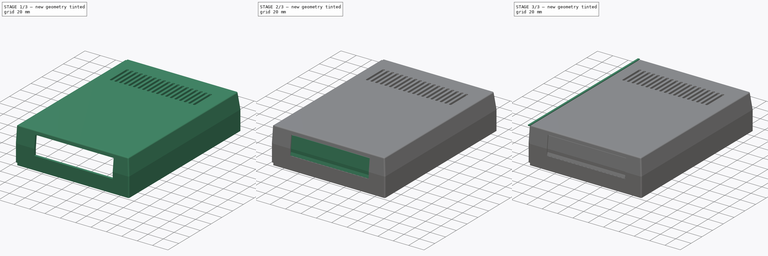
[diagram: build sequence overview — one tinted view per stage of 3, left to right]
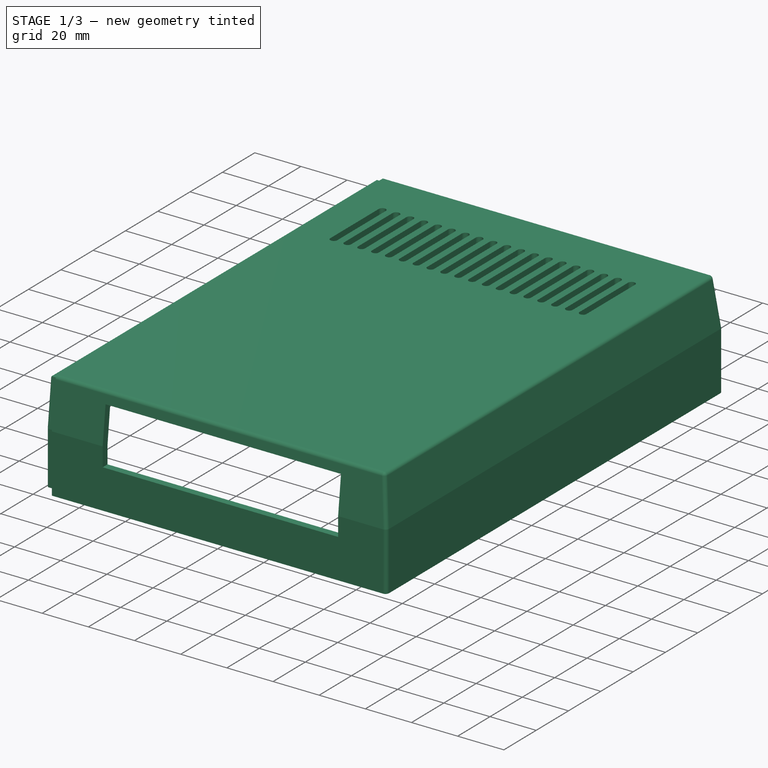
[diagram: stage 1 of 3 — iso view after this stage's code; geometry added in this stage tinted green]
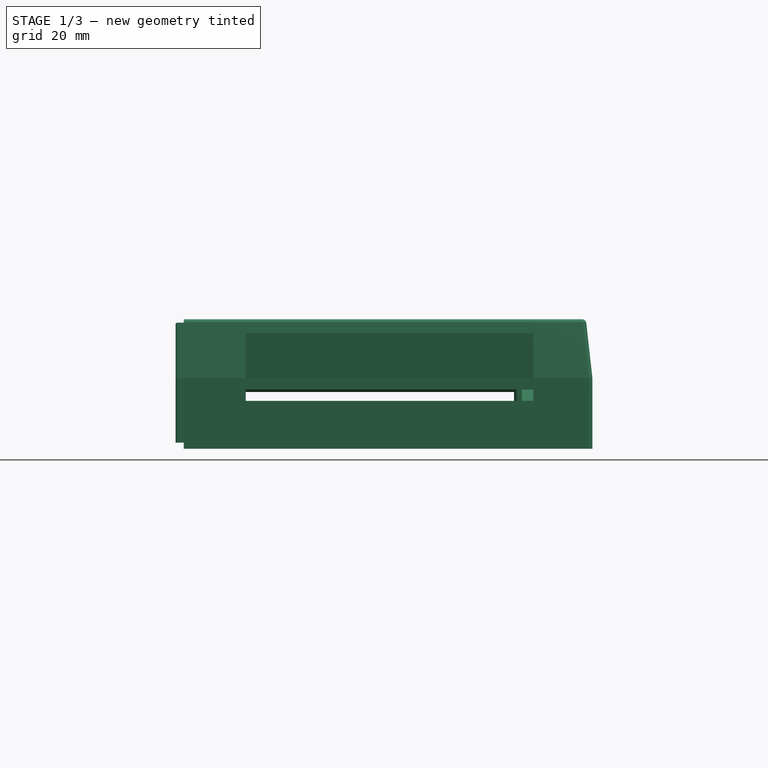
[diagram: stage 1 of 3 — front view after this stage's code; geometry added in this stage tinted green]
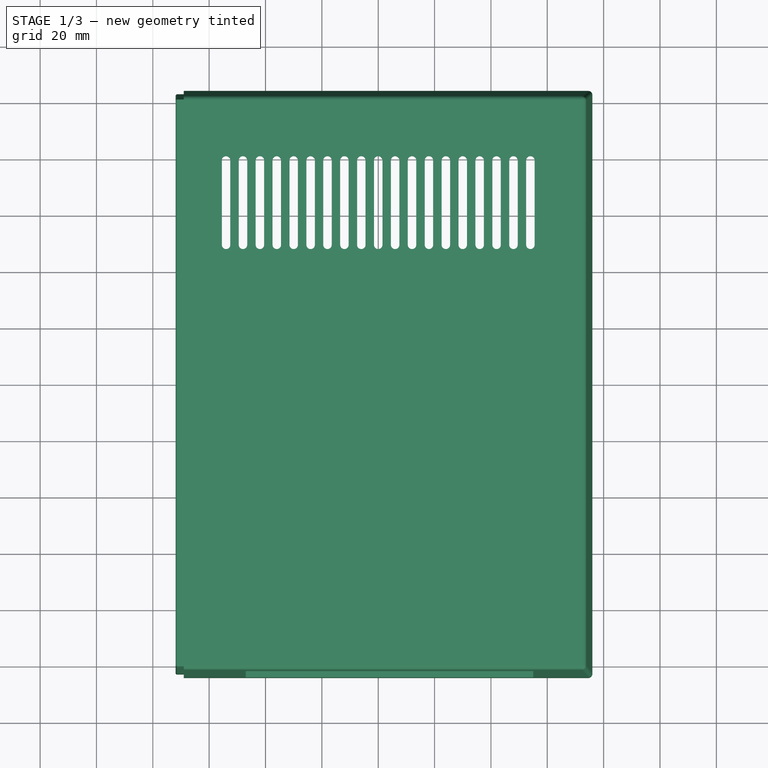
[diagram: stage 1 of 3 — top view after this stage's code; geometry added in this stage tinted green]
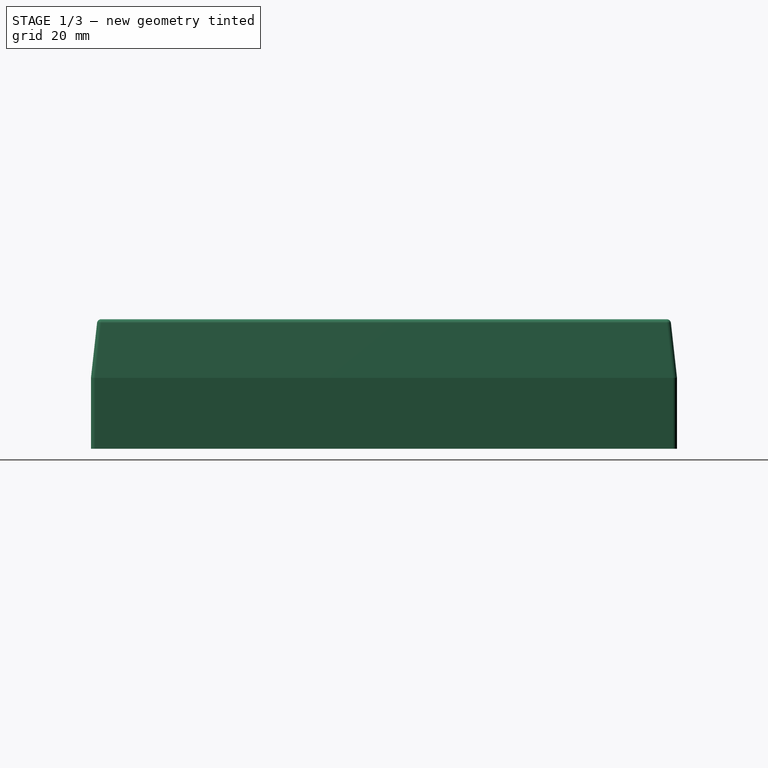
[diagram: stage 1 of 3 — right view after this stage's code; geometry added in this stage tinted green]
FCSTD DOCUMENT  (FreeCAD 0.21R33771 (Git))
Label: TopRight
License: All rights reserved
LicenseURL: https://en.wikipedia.org/wiki/All_rights_reserved
objects: Sketcher::SketchObject×5, Part::Feature×4, PartDesign::Pad×3, PartDesign::Body×2, PartDesign::Pocket×2, PartDesign::FeatureBase×1, PartDesign::Chamfer×1, PartDesign::Fillet×1, App::Part×1
note: 26 computed .brp shape members not serialized (recipe doc carries the construction recipe); baked Part::Feature solids carry a one-line shape summary decoded from their .brp

FEATURE [PartDesign::Body] Body  label="Support"
  Group = -> [Sketch,Pad]
  Origin = -> Origin001
  Tip = -> Pad
FEATURE [PartDesign::FeatureBase] BaseFeature
  BaseFeature = -> Part__Feature003
FEATURE [PartDesign::Chamfer] Chamfer  label="Lip chamfer"
  Angle = 45
  Base = -> BaseFeature [Edge578,Edge476,Edge479,Edge481,Edge579]
  BaseFeature = -> BaseFeature
  ChamferType = 0
  FlipDirection = false
  Refine = true
  Size = 0.4
  Size2 = 1
  SupportTransform = false
  UseAllEdges = false
FEATURE [PartDesign::Fillet] Fillet
  Base = -> Chamfer [Edge351,Edge345,Edge434,Edge439,Edge90,Edge115,Edge456,Edge171,Edge170,Edge441,Edge132,Edge156,Edge157,Edge356,Edge357,Edge355]
  BaseFeature = -> Chamfer
  Radius = 1.5
  Refine = true
  SupportTransform = false
  UseAllEdges = false
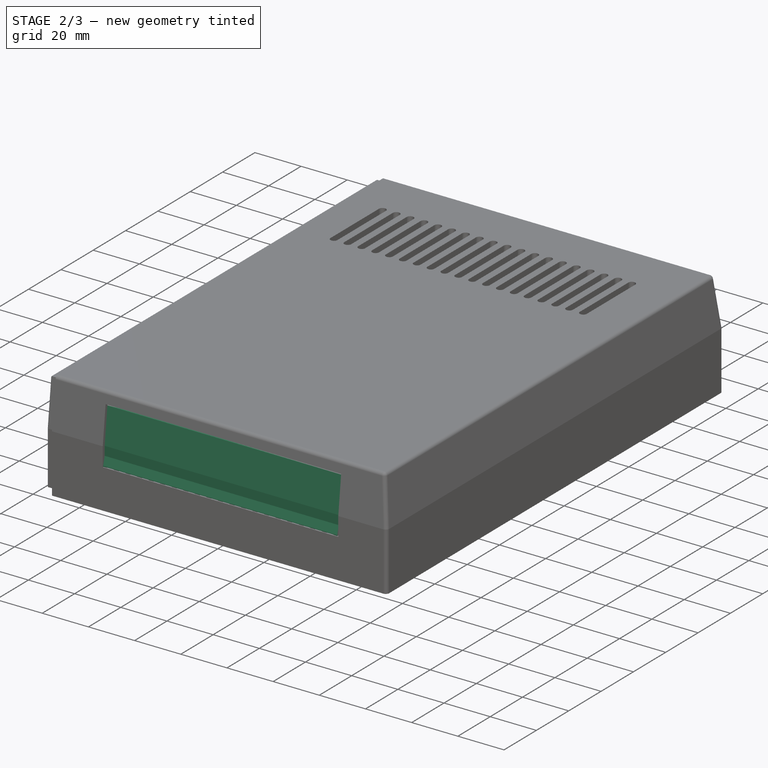
[diagram: stage 2 of 3 — iso view after this stage's code; geometry added in this stage tinted green]
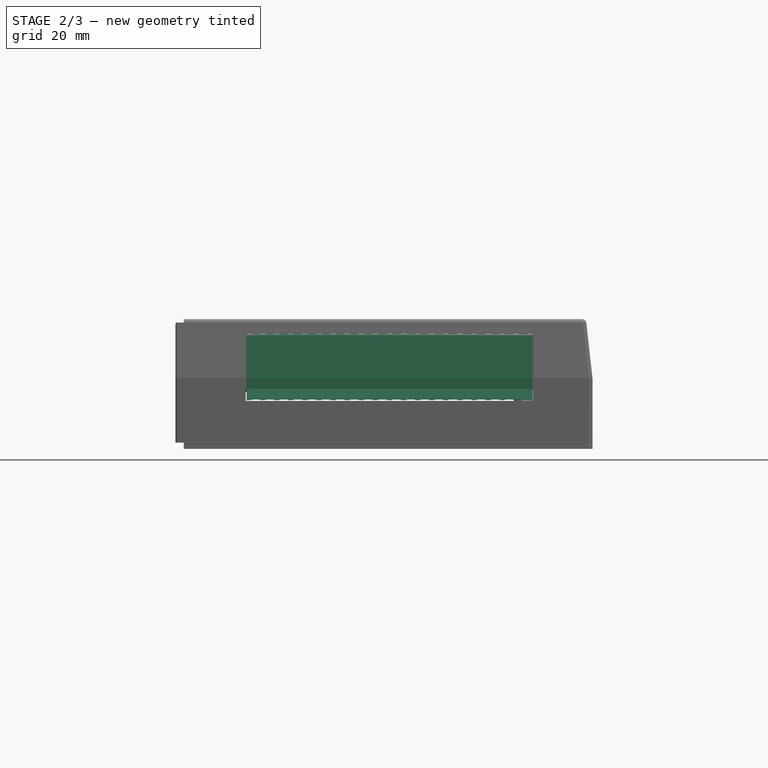
[diagram: stage 2 of 3 — front view after this stage's code; geometry added in this stage tinted green]
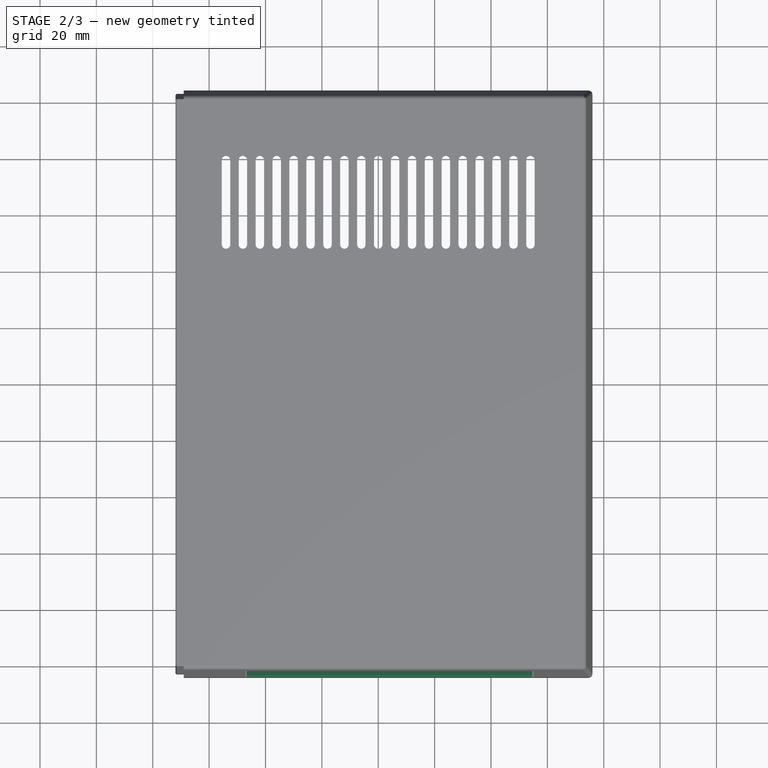
[diagram: stage 2 of 3 — top view after this stage's code; geometry added in this stage tinted green]
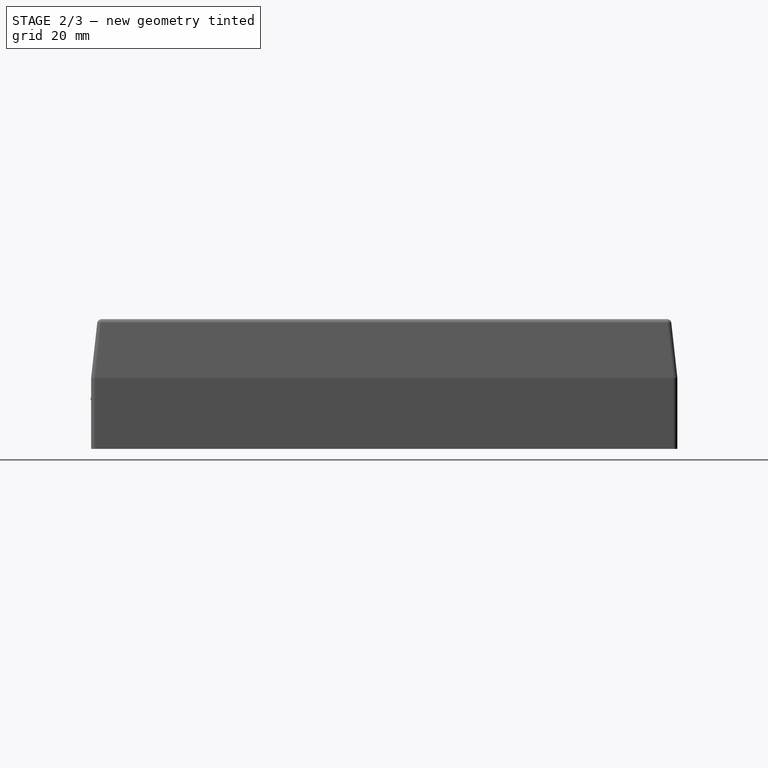
[diagram: stage 2 of 3 — right view after this stage's code; geometry added in this stage tinted green]
FEATURE [Sketcher::SketchObject] Sketch002  label="Floppy bezel"
  AttachmentOffset = pos=(0,0,51) rot=(0,0,1;0rad)
  ExternalGeometry = -> [Fillet]
  FullyConstrained = false
  MapMode = 5
  Placement = pos=(104,0,0) rot=(0.57735,0.57735,0.57735;2.0944rad)
  Support = -> [Fillet]
  sketch-geometry (12):
    g0: LineSegment StartX=-101.011 StartY=47 StartZ=0 EndX=-100.511 EndY=47 EndZ=0
    g1: LineSegment StartX=-100.077 StartY=46.225 StartZ=0 EndX=-101.75 EndY=31.1662 EndZ=0
    g2: LineSegment StartX=-101.75 StartY=31.1662 StartZ=0 EndX=-101.75 EndY=27.2454 EndZ=0
    g3: LineSegment StartX=-103.25 StartY=27.2455 StartZ=0 EndX=-103.25 EndY=31.1662 EndZ=0
    g4: LineSegment StartX=-103.25 StartY=31.1662 StartZ=0 EndX=-101.564 EndY=46.3409 EndZ=0
    g5: LineSegment StartX=-103.25 StartY=27.2455 StartZ=0 EndX=-104.2 EndY=23.7 EndZ=0
    g6: LineSegment StartX=-100.8 StartY=23.7 StartZ=0 EndX=-101.75 EndY=27.2454 EndZ=0
    g7: LineSegment StartX=-101.011 StartY=47 StartZ=0 EndX=-101.564 EndY=46.3409 EndZ=0
    g8: LineSegment StartX=-100.511 StartY=47 StartZ=0 EndX=-100.077 EndY=46.225 EndZ=0
    g9: LineSegment StartX=-100.8 StartY=23.7 StartZ=0 EndX=-100.8 EndY=23.3 EndZ=0
    g10: LineSegment StartX=-100.8 StartY=23.3 StartZ=0 EndX=-104.2 EndY=23.3 EndZ=0
    g11: LineSegment StartX=-104.2 StartY=23.7 StartZ=0 EndX=-104.2 EndY=23.3 EndZ=0
  constraints (30):
    c: Horizontal(g0)
    c: Coincident(g1,g2)
    c: Vertical(g2)
    c: Vertical(g3)
    c: Coincident(g3,g4)
    c: Parallel(g4,g-4)
    c: Parallel(g1,g-5)
    c: DistanceX(g-3,g-3) = 3.01846
    c: DistanceX(g-8,g-8) = 3
    c: DistanceX(g3,g2) = 1.5
    c: DistanceX(g-8,g3) = 0.75
    c: Distance(g3,g-6) = 0.75
    c: Coincident(g3,g5)
    c: Coincident(g6,g2)
    c: Angle(g3,g5) = 2.87979
    c: Angle(g6,g2) = 2.87979
    c: Angle(g7,g-3) = 2.26893
    c: Coincident(g0,g7)
    c: Coincident(g4,g7)
    c: Coincident(g0,g8)
    c: Coincident(g1,g8)
    c: PointOnObject(g0,g-3)
    c: DistanceX(g0,g0) = 0.5
    c: Coincident(g6,g9)
    c: Vertical(g9)
    c: Coincident(g9,g10)
    c: Horizontal(g10)
    c: Coincident(g5,g11)
    c: Block(g11)
    c: Coincident(g10,g11)
FEATURE [PartDesign::Pad] Pad001  label="Floppy bezel001"
  BaseFeature = -> Fillet
  Direction = (1,0,0)
  Length = 101.4
  Length2 = 10
  Midplane = true
  Profile = -> Sketch002
  ReferenceAxis = -> Sketch002 [N_Axis]
  Refine = true
  Type = 0
FEATURE [Sketcher::SketchObject] Sketch003
  FullyConstrained = true
  MapMode = 5
  Placement = pos=(149.1,3.82e-14,-7.7e-15) rot=(-0.57735,0.57735,0.57735;4.18879rad)
  Support = -> [Part__Feature001]
  sketch-geometry (1):
    g0: Circle CenterX=-97 CenterY=15 CenterZ=0 NormalX=0 NormalY=0 NormalZ=1 AngleXU=0 Radius=1.25
  constraints (2):
    c: Diameter(g0) = 2.5
    c: Block(g0)
FEATURE [Sketcher::SketchObject] Sketch004
  ExternalGeometry = -> [Pad001]
  FullyConstrained = false
  MapMode = 5
  Placement = pos=(0,-104.2,0) rot=(1,0,0;1.5708rad)
  Support = -> [Pad001]
  sketch-geometry (199):
    g0: LineSegment StartX=104 StartY=2.09798 StartZ=0 EndX=104 EndY=55.3632 EndZ=0
    g1: LineSegment StartX=153 StartY=23.2 StartZ=0 EndX=150 EndY=23.2 EndZ=0
    g2: LineSegment StartX=150 StartY=23.2 StartZ=0 EndX=150 EndY=23.5 EndZ=0
    g3: LineSegment StartX=150 StartY=23.5 StartZ=0 EndX=153 EndY=23.5 EndZ=0
    g4: LineSegment StartX=153 StartY=23.5 StartZ=0 EndX=153 EndY=23.2 EndZ=0
    g5: LineSegment StartX=148 StartY=23.2 StartZ=0 EndX=145 EndY=23.2 EndZ=0
    g6: LineSegment StartX=145 StartY=23.2 StartZ=0 EndX=145 EndY=23.5 EndZ=0
    g7: LineSegment StartX=145 StartY=23.5 StartZ=0 EndX=148 EndY=23.5 EndZ=0
    g8: LineSegment StartX=148 StartY=23.5 StartZ=0 EndX=148 EndY=23.2 EndZ=0
    g9: LineSegment StartX=153 StartY=23.2 StartZ=0 EndX=148 EndY=23.2 EndZ=0
    g10: LineSegment StartX=143 StartY=23.2 StartZ=0 EndX=140 EndY=23.2 EndZ=0
    g11: LineSegment StartX=140 StartY=23.2 StartZ=0 EndX=140 EndY=23.5 EndZ=0
    g12: LineSegment StartX=140 StartY=23.5 StartZ=0 EndX=143 EndY=23.5 EndZ=0
    g13: LineSegment StartX=143 StartY=23.5 StartZ=0 EndX=143 EndY=23.2 EndZ=0
    g14: LineSegment StartX=148 StartY=23.2 StartZ=0 EndX=143 EndY=23.2 EndZ=0
    g15: LineSegment StartX=138 StartY=23.2 StartZ=0 EndX=135 EndY=23.2 EndZ=0
    g16: LineSegment StartX=135 StartY=23.2 StartZ=0 EndX=135 EndY=23.5 EndZ=0
    g17: LineSegment StartX=135 StartY=23.5 StartZ=0 EndX=138 EndY=23.5 EndZ=0
    g18: LineSegment StartX=138 StartY=23.5 StartZ=0 EndX=138 EndY=23.2 EndZ=0
    g19: LineSegment StartX=143 StartY=23.2 StartZ=0 EndX=138 EndY=23.2 EndZ=0
    g20: LineSegment StartX=133 StartY=23.2 StartZ=0 EndX=130 EndY=23.2 EndZ=0
    g21: LineSegment StartX=130 StartY=23.2 StartZ=0 EndX=130 EndY=23.5 EndZ=0
    g22: LineSegment StartX=130 StartY=23.5 StartZ=0 EndX=133 EndY=23.5 EndZ=0
    g23: LineSegment StartX=133 StartY=23.5 StartZ=0 EndX=133 EndY=23.2 EndZ=0
    g24: LineSegment StartX=138 StartY=23.2 StartZ=0 EndX=133 EndY=23.2 EndZ=0
    g25: LineSegment StartX=128 StartY=23.2 StartZ=0 EndX=125 EndY=23.2 EndZ=0
    g26: LineSegment StartX=125 StartY=23.2 StartZ=0 EndX=125 EndY=23.5 EndZ=0
    g27: LineSegment StartX=125 StartY=23.5 StartZ=0 EndX=128 EndY=23.5 EndZ=0
    g28: LineSegment StartX=128 StartY=23.5 StartZ=0 EndX=128 EndY=23.2 EndZ=0
    g29: LineSegment StartX=133 StartY=23.2 StartZ=0 EndX=128 EndY=23.2 EndZ=0
    g30: LineSegment StartX=123 StartY=23.2 StartZ=0 EndX=120 EndY=23.2 EndZ=0
    g31: LineSegment StartX=120 StartY=23.2 StartZ=0 EndX=120 EndY=23.5 EndZ=0
    g32: LineSegment StartX=120 StartY=23.5 StartZ=0 EndX=123 EndY=23.5 EndZ=0
    g33: LineSegment StartX=123 StartY=23.5 StartZ=0 EndX=123 EndY=23.2 EndZ=0
    g34: LineSegment StartX=128 StartY=23.2 StartZ=0 EndX=123 EndY=23.2 EndZ=0
    g35: LineSegment StartX=118 StartY=23.2 StartZ=0 EndX=115 EndY=23.2 EndZ=0
    g36: LineSegment StartX=115 StartY=23.2 StartZ=0 EndX=115 EndY=23.5 EndZ=0
    g37: LineSegment StartX=115 StartY=23.5 StartZ=0 EndX=118 EndY=23.5 EndZ=0
    g38: LineSegment StartX=118 StartY=23.5 StartZ=0 EndX=118 EndY=23.2 EndZ=0
    g39: LineSegment StartX=123 StartY=23.2 StartZ=0 EndX=118 EndY=23.2 EndZ=0
    g40: LineSegment StartX=113 StartY=23.2 StartZ=0 EndX=110 EndY=23.2 EndZ=0
    g41: LineSegment StartX=110 StartY=23.2 StartZ=0 EndX=110 EndY=23.5 EndZ=0
    g42: LineSegment StartX=110 StartY=23.5 StartZ=0 EndX=113 EndY=23.5 EndZ=0
    g43: LineSegment StartX=113 StartY=23.5 StartZ=0 EndX=113 EndY=23.2 EndZ=0
    g44: LineSegment StartX=118 StartY=23.2 StartZ=0 EndX=113 EndY=23.2 EndZ=0
    g45: LineSegment StartX=108 StartY=23.2 StartZ=0 EndX=105 EndY=23.2 EndZ=0
    g46: LineSegment StartX=105 StartY=23.2 StartZ=0 EndX=105 EndY=23.5 EndZ=0
    g47: LineSegment StartX=105 StartY=23.5 StartZ=0 EndX=108 EndY=23.5 EndZ=0
    g48: LineSegment StartX=108 StartY=23.5 StartZ=0 EndX=108 EndY=23.2 EndZ=0
    g49: LineSegment StartX=113 StartY=23.2 StartZ=0 EndX=108 EndY=23.2 EndZ=0
    g50: LineSegment StartX=103 StartY=23.2 StartZ=0 EndX=100 EndY=23.2 EndZ=0
    g51: LineSegment StartX=100 StartY=23.2 StartZ=0 EndX=100 EndY=23.5 EndZ=0
    g52: LineSegment StartX=100 StartY=23.5 StartZ=0 EndX=103 EndY=23.5 EndZ=0
    g53: LineSegment StartX=103 StartY=23.5 StartZ=0 EndX=103 EndY=23.2 EndZ=0
    g54: LineSegment StartX=108 StartY=23.2 StartZ=0 EndX=103 EndY=23.2 EndZ=0
    g55: LineSegment StartX=98 StartY=23.2 StartZ=0 EndX=95 EndY=23.2 EndZ=0
    g56: LineSegment StartX=95 StartY=23.2 StartZ=0 EndX=95 EndY=23.5 EndZ=0
    g57: LineSegment StartX=95 StartY=23.5 StartZ=0 EndX=98 EndY=23.5 EndZ=0
    g58: LineSegment StartX=98 StartY=23.5 StartZ=0 EndX=98 EndY=23.2 EndZ=0
    g59: LineSegment StartX=103 StartY=23.2 StartZ=0 EndX=98 EndY=23.2 EndZ=0
    g60: LineSegment StartX=93 StartY=23.2 StartZ=0 EndX=90 EndY=23.2 EndZ=0
    g61: LineSegment StartX=90 StartY=23.2 StartZ=0 EndX=90 EndY=23.5 EndZ=0
    g62: LineSegment StartX=90 StartY=23.5 StartZ=0 EndX=93 EndY=23.5 EndZ=0
    g63: LineSegment StartX=93 StartY=23.5 StartZ=0 EndX=93 EndY=23.2 EndZ=0
    g64: LineSegment StartX=98 StartY=23.2 StartZ=0 EndX=93 EndY=23.2 EndZ=0
    g65: LineSegment StartX=88 StartY=23.2 StartZ=0 EndX=85 EndY=23.2 EndZ=0
    g66: LineSegment StartX=85 StartY=23.2 StartZ=0 EndX=85 EndY=23.5 EndZ=0
    g67: LineSegment StartX=85 StartY=23.5 StartZ=0 EndX=88 EndY=23.5 EndZ=0
    g68: LineSegment StartX=88 StartY=23.5 StartZ=0 EndX=88 EndY=23.2 EndZ=0
    g69: LineSegment StartX=93 StartY=23.2 StartZ=0 EndX=88 EndY=23.2 EndZ=0
    g70: LineSegment StartX=83 StartY=23.2 StartZ=0 EndX=80 EndY=23.2 EndZ=0
    g71: LineSegment StartX=80 StartY=23.2 StartZ=0 EndX=80 EndY=23.5 EndZ=0
    g72: LineSegment StartX=80 StartY=23.5 StartZ=0 EndX=83 EndY=23.5 EndZ=0
    g73: LineSegment StartX=83 StartY=23.5 StartZ=0 EndX=83 EndY=23.2 EndZ=0
    g74: LineSegment StartX=88 StartY=23.2 StartZ=0 EndX=83 EndY=23.2 EndZ=0
    g75: LineSegment StartX=78 StartY=23.2 StartZ=0 EndX=75 EndY=23.2 EndZ=0
    g76: LineSegment StartX=75 StartY=23.2 StartZ=0 EndX=75 EndY=23.5 EndZ=0
    g77: LineSegment StartX=75 StartY=23.5 StartZ=0 EndX=78 EndY=23.5 EndZ=0
    g78: LineSegment StartX=78 StartY=23.5 StartZ=0 EndX=78 EndY=23.2 EndZ=0
    g79: LineSegment StartX=83 StartY=23.2 StartZ=0 EndX=78 EndY=23.2 EndZ=0
    g80: LineSegment StartX=73 StartY=23.2 StartZ=0 EndX=70 EndY=23.2 EndZ=0
    g81: LineSegment StartX=70 StartY=23.2 StartZ=0 EndX=70 EndY=23.5 EndZ=0
    g82: LineSegment StartX=70 StartY=23.5 StartZ=0 EndX=73 EndY=23.5 EndZ=0
    g83: LineSegment StartX=73 StartY=23.5 StartZ=0 EndX=73 EndY=23.2 EndZ=0
    g84: LineSegment StartX=78 StartY=23.2 StartZ=0 EndX=73 EndY=23.2 EndZ=0
    g85: LineSegment StartX=68 StartY=23.2 StartZ=0 EndX=65 EndY=23.2 EndZ=0
    g86: LineSegment StartX=65 StartY=23.2 StartZ=0 EndX=65 EndY=23.5 EndZ=0
    g87: LineSegment StartX=65 StartY=23.5 StartZ=0 EndX=68 EndY=23.5 EndZ=0
    g88: LineSegment StartX=68 StartY=23.5 StartZ=0 EndX=68 EndY=23.2 EndZ=0
    g89: LineSegment StartX=73 StartY=23.2 StartZ=0 EndX=68 EndY=23.2 EndZ=0
    g90: LineSegment StartX=63 StartY=23.2 StartZ=0 EndX=60 EndY=23.2 EndZ=0
    g91: LineSegment StartX=60 StartY=23.2 StartZ=0 EndX=60 EndY=23.5 EndZ=0
    g92: LineSegment StartX=60 StartY=23.5 StartZ=0 EndX=63 EndY=23.5 EndZ=0
    g93: LineSegment StartX=63 StartY=23.5 StartZ=0 EndX=63 EndY=23.2 EndZ=0
    g94: LineSegment StartX=68 StartY=23.2 StartZ=0 EndX=63 EndY=23.2 EndZ=0
    g95: LineSegment StartX=58 StartY=23.2 StartZ=0 EndX=55 EndY=23.2 EndZ=0
    g96: LineSegment StartX=55 StartY=23.2 StartZ=0 EndX=55 EndY=23.5 EndZ=0
    g97: LineSegment StartX=55 StartY=23.5 StartZ=0 EndX=58 EndY=23.5 EndZ=0
    g98: LineSegment StartX=58 StartY=23.5 StartZ=0 EndX=58 EndY=23.2 EndZ=0
    g99: LineSegment StartX=63 StartY=23.2 StartZ=0 EndX=58 EndY=23.2 EndZ=0
    g100: LineSegment StartX=153 StartY=46.7 StartZ=0 EndX=150 EndY=46.7 EndZ=0
    g101: LineSegment StartX=150 StartY=46.7 StartZ=0 EndX=150 EndY=47 EndZ=0
    g102: LineSegment StartX=150 StartY=47 StartZ=0 EndX=153 EndY=47 EndZ=0
    g103: LineSegment StartX=153 StartY=47 StartZ=0 EndX=153 EndY=46.7 EndZ=0
    g104: LineSegment StartX=148 StartY=46.7 StartZ=0 EndX=145 EndY=46.7 EndZ=0
    g105: LineSegment StartX=145 StartY=46.7 StartZ=0 EndX=145 EndY=47 EndZ=0
    g106: LineSegment StartX=145 StartY=47 StartZ=0 EndX=148 EndY=47 EndZ=0
    g107: LineSegment StartX=148 StartY=47 StartZ=0 EndX=148 EndY=46.7 EndZ=0
    g108: LineSegment StartX=153 StartY=46.7 StartZ=0 EndX=148 EndY=46.7 EndZ=0
    g109: LineSegment StartX=143 StartY=46.7 StartZ=0 EndX=140 EndY=46.7 EndZ=0
    g110: LineSegment StartX=140 StartY=46.7 StartZ=0 EndX=140 EndY=47 EndZ=0
    g111: LineSegment StartX=140 StartY=47 StartZ=0 EndX=143 EndY=47 EndZ=0
    g112: LineSegment StartX=143 StartY=47 StartZ=0 EndX=143 EndY=46.7 EndZ=0
    g113: LineSegment StartX=148 StartY=46.7 StartZ=0 EndX=143 EndY=46.7 EndZ=0
    g114: LineSegment StartX=138 StartY=46.7 StartZ=0 EndX=135 EndY=46.7 EndZ=0
    g115: LineSegment StartX=135 StartY=46.7 StartZ=0 EndX=135 EndY=47 EndZ=0
    g116: LineSegment StartX=135 StartY=47 StartZ=0 EndX=138 EndY=47 EndZ=0
    g117: LineSegment StartX=138 StartY=47 StartZ=0 EndX=138 EndY=46.7 EndZ=0
    g118: LineSegment StartX=143 StartY=46.7 StartZ=0 EndX=138 EndY=46.7 EndZ=0
    g119: LineSegment StartX=133 StartY=46.7 StartZ=0 EndX=130 EndY=46.7 EndZ=0
    g120: LineSegment StartX=130 StartY=46.7 StartZ=0 EndX=130 EndY=47 EndZ=0
    g121: LineSegment StartX=130 StartY=47 StartZ=0 EndX=133 EndY=47 EndZ=0
    g122: LineSegment StartX=133 StartY=47 StartZ=0 EndX=133 EndY=46.7 EndZ=0
    g123: LineSegment StartX=138 StartY=46.7 StartZ=0 EndX=133 EndY=46.7 EndZ=0
    g124: LineSegment StartX=128 StartY=46.7 StartZ=0 EndX=125 EndY=46.7 EndZ=0
    g125: LineSegment StartX=125 StartY=46.7 StartZ=0 EndX=125 EndY=47 EndZ=0
    g126: LineSegment StartX=125 StartY=47 StartZ=0 EndX=128 EndY=47 EndZ=0
    g127: LineSegment StartX=128 StartY=47 StartZ=0 EndX=128 EndY=46.7 EndZ=0
    g128: LineSegment StartX=133 StartY=46.7 StartZ=0 EndX=128 EndY=46.7 EndZ=0
    g129: LineSegment StartX=123 StartY=46.7 StartZ=0 EndX=120 EndY=46.7 EndZ=0
    g130: LineSegment StartX=120 StartY=46.7 StartZ=0 EndX=120 EndY=47 EndZ=0
    g131: LineSegment StartX=120 StartY=47 StartZ=0 EndX=123 EndY=47 EndZ=0
    g132: LineSegment StartX=123 StartY=47 StartZ=0 EndX=123 EndY=46.7 EndZ=0
    g133: LineSegment StartX=128 StartY=46.7 StartZ=0 EndX=123 EndY=46.7 EndZ=0
    g134: LineSegment StartX=118 StartY=46.7 StartZ=0 EndX=115 EndY=46.7 EndZ=0
    g135: LineSegment StartX=115 StartY=46.7 StartZ=0 EndX=115 EndY=47 EndZ=0
    g136: LineSegment StartX=115 StartY=47 StartZ=0 EndX=118 EndY=47 EndZ=0
    g137: LineSegment StartX=118 StartY=47 StartZ=0 EndX=118 EndY=46.7 EndZ=0
    g138: LineSegment StartX=123 StartY=46.7 StartZ=0 EndX=118 EndY=46.7 EndZ=0
    g139: LineSegment StartX=113 StartY=46.7 StartZ=0 EndX=110 EndY=46.7 EndZ=0
    g140: LineSegment StartX=110 StartY=46.7 StartZ=0 EndX=110 EndY=47 EndZ=0
    g141: LineSegment StartX=110 StartY=47 StartZ=0 EndX=113 EndY=47 EndZ=0
    g142: LineSegment StartX=113 StartY=47 StartZ=0 EndX=113 EndY=46.7 EndZ=0
    g143: LineSegment StartX=118 StartY=46.7 StartZ=0 EndX=113 EndY=46.7 EndZ=0
    g144: LineSegment StartX=108 StartY=46.7 StartZ=0 EndX=105 EndY=46.7 EndZ=0
    g145: LineSegment StartX=105 StartY=46.7 StartZ=0 EndX=105 EndY=47 EndZ=0
    g146: LineSegment StartX=105 StartY=47 StartZ=0 EndX=108 EndY=47 EndZ=0
    g147: LineSegment StartX=108 StartY=47 StartZ=0 EndX=108 EndY=46.7 EndZ=0
    g148: LineSegment StartX=113 StartY=46.7 StartZ=0 EndX=108 EndY=46.7 EndZ=0
    g149: LineSegment StartX=103 StartY=46.7 StartZ=0 EndX=100 EndY=46.7 EndZ=0
    g150: LineSegment StartX=100 StartY=46.7 StartZ=0 EndX=100 EndY=47 EndZ=0
    g151: LineSegment StartX=100 StartY=47 StartZ=0 EndX=103 EndY=47 EndZ=0
    g152: LineSegment StartX=103 StartY=47 StartZ=0 EndX=103 EndY=46.7 EndZ=0
    g153: LineSegment StartX=108 StartY=46.7 StartZ=0 EndX=103 EndY=46.7 EndZ=0
    g154: LineSegment StartX=98 StartY=46.7 StartZ=0 EndX=95 EndY=46.7 EndZ=0
    g155: LineSegment StartX=95 StartY=46.7 StartZ=0 EndX=95 EndY=47 EndZ=0
    g156: LineSegment StartX=95 StartY=47 StartZ=0 EndX=98 EndY=47 EndZ=0
    g157: LineSegment StartX=98 StartY=47 StartZ=0 EndX=98 EndY=46.7 EndZ=0
    g158: LineSegment StartX=103 StartY=46.7 StartZ=0 EndX=98 EndY=46.7 EndZ=0
    g159: LineSegment StartX=93 StartY=46.7 StartZ=0 EndX=90 EndY=46.7 EndZ=0
    g160: LineSegment StartX=90 StartY=46.7 StartZ=0 EndX=90 EndY=47 EndZ=0
    g161: LineSegment StartX=90 StartY=47 StartZ=0 EndX=93 EndY=47 EndZ=0
    g162: LineSegment StartX=93 StartY=47 StartZ=0 EndX=93 EndY=46.7 EndZ=0
    g163: LineSegment StartX=98 StartY=46.7 StartZ=0 EndX=93 EndY=46.7 EndZ=0
    g164: LineSegment StartX=88 StartY=46.7 StartZ=0 EndX=85 EndY=46.7 EndZ=0
    g165: LineSegment StartX=85 StartY=46.7 StartZ=0 EndX=85 EndY=47 EndZ=0
    g166: LineSegment StartX=85 StartY=47 StartZ=0 EndX=88 EndY=47 EndZ=0
    g167: LineSegment StartX=88 StartY=47 StartZ=0 EndX=88 EndY=46.7 EndZ=0
    g168: LineSegment StartX=93 StartY=46.7 StartZ=0 EndX=88 EndY=46.7 EndZ=0
    g169: LineSegment StartX=83 StartY=46.7 StartZ=0 EndX=80 EndY=46.7 EndZ=0
    g170: LineSegment StartX=80 StartY=46.7 StartZ=0 EndX=80 EndY=47 EndZ=0
    g171: LineSegment StartX=80 StartY=47 StartZ=0 EndX=83 EndY=47 EndZ=0
    g172: LineSegment StartX=83 StartY=47 StartZ=0 EndX=83 EndY=46.7 EndZ=0
    g173: LineSegment StartX=88 StartY=46.7 StartZ=0 EndX=83 EndY=46.7 EndZ=0
    g174: LineSegment StartX=78 StartY=46.7 StartZ=0 EndX=75 EndY=46.7 EndZ=0
    g175: LineSegment StartX=75 StartY=46.7 StartZ=0 EndX=75 EndY=47 EndZ=0
    g176: LineSegment StartX=75 StartY=47 StartZ=0 EndX=78 EndY=47 EndZ=0
    g177: LineSegment StartX=78 StartY=47 StartZ=0 EndX=78 EndY=46.7 EndZ=0
    g178: LineSegment StartX=83 StartY=46.7 StartZ=0 EndX=78 EndY=46.7 EndZ=0
    g179: LineSegment StartX=73 StartY=46.7 StartZ=0 EndX=70 EndY=46.7 EndZ=0
    g180: LineSegment StartX=70 StartY=46.7 StartZ=0 EndX=70 EndY=47 EndZ=0
    g181: LineSegment StartX=70 StartY=47 StartZ=0 EndX=73 EndY=47 EndZ=0
    g182: LineSegment StartX=73 StartY=47 StartZ=0 EndX=73 EndY=46.7 EndZ=0
    g183: LineSegment StartX=78 StartY=46.7 StartZ=0 EndX=73 EndY=46.7 EndZ=0
    g184: LineSegment StartX=68 StartY=46.7 StartZ=0 EndX=65 EndY=46.7 EndZ=0
    g185: LineSegment StartX=65 StartY=46.7 StartZ=0 EndX=65 EndY=47 EndZ=0
    g186: LineSegment StartX=65 StartY=47 StartZ=0 EndX=68 EndY=47 EndZ=0
    g187: LineSegment StartX=68 StartY=47 StartZ=0 EndX=68 EndY=46.7 EndZ=0
    g188: LineSegment StartX=73 StartY=46.7 StartZ=0 EndX=68 EndY=46.7 EndZ=0
    g189: LineSegment StartX=63 StartY=46.7 StartZ=0 EndX=60 EndY=46.7 EndZ=0
    g190: LineSegment StartX=60 StartY=46.7 StartZ=0 EndX=60 EndY=47 EndZ=0
    g191: LineSegment StartX=60 StartY=47 StartZ=0 EndX=63 EndY=47 EndZ=0
    g192: LineSegment StartX=63 StartY=47 StartZ=0 EndX=63 EndY=46.7 EndZ=0
    g193: LineSegment StartX=68 StartY=46.7 StartZ=0 EndX=63 EndY=46.7 EndZ=0
    g194: LineSegment StartX=58 StartY=46.7 StartZ=0 EndX=55 EndY=46.7 EndZ=0
    g195: LineSegment StartX=55 StartY=46.7 StartZ=0 EndX=55 EndY=47 EndZ=0
    g196: LineSegment StartX=55 StartY=47 StartZ=0 EndX=58 EndY=47 EndZ=0
    g197: LineSegment StartX=58 StartY=47 StartZ=0 EndX=58 EndY=46.7 EndZ=0
    g198: LineSegment StartX=63 StartY=46.7 StartZ=0 EndX=58 EndY=46.7 EndZ=0
  constraints (476):
    c: Vertical(g0)
    c: DistanceX(g-3,g-3) = 101.4
    c: Distance(g-4,g0) = 50.7
    c: Block(g0)
    c: Coincident(g1,g2)
    c: Coincident(g2,g3)
    c: Coincident(g3,g4)
    c: Coincident(g4,g1)
    c: Horizontal(g1)
    c: Horizontal(g3)
    c: Vertical(g2)
    c: Vertical(g4)
    c: Coincident(g5,g6)
    c: Coincident(g6,g7)
    c: Coincident(g7,g8)
    c: Coincident(g8,g5)
    c: Horizontal(g5)
    c: Horizontal(g7)
    c: Vertical(g6)
    c: Vertical(g8)
    c: Coincident(g1,g9)
    c: Coincident(g5,g9)
    c: Distance(g9) = 5
    c: Angle(g9) = 3.14159
    c: Coincident(g10,g11)
    c: Coincident(g11,g12)
    c: Coincident(g12,g13)
    c: Coincident(g13,g10)
    c: Horizontal(g10)
    c: Horizontal(g12)
    c: Vertical(g11)
    c: Vertical(g13)
    c: Coincident(g5,g14)
    c: Coincident(g10,g14)
    c: Equal(g9,g14)
    c: Parallel(g14,g9)
    c: Coincident(g15,g16)
    c: Coincident(g16,g17)
    c: Coincident(g17,g18)
    c: Coincident(g18,g15)
    c: Horizontal(g15)
    c: Horizontal(g17)
    c: Vertical(g16)
    c: Vertical(g18)
    c: Coincident(g10,g19)
    c: Coincident(g15,g19)
    c: Equal(g9,g19)
    c: Parallel(g19,g9)
    c: Coincident(g20,g21)
    c: Coincident(g21,g22)
    c: Coincident(g22,g23)
    c: Coincident(g23,g20)
    c: Horizontal(g20)
    c: Horizontal(g22)
    c: Vertical(g21)
    c: Vertical(g23)
    c: Coincident(g15,g24)
    c: Coincident(g20,g24)
    c: Equal(g9,g24)
    c: Parallel(g24,g9)
    c: Coincident(g25,g26)
    c: Coincident(g26,g27)
    c: Coincident(g27,g28)
    c: Coincident(g28,g25)
    c: Horizontal(g25)
    c: Horizontal(g27)
    c: Vertical(g26)
    c: Vertical(g28)
    c: Coincident(g20,g29)
    c: Coincident(g25,g29)
    c: Equal(g9,g29)
    c: Parallel(g29,g9)
    c: Coincident(g30,g31)
    c: Coincident(g31,g32)
    c: Coincident(g32,g33)
    c: Coincident(g33,g30)
    c: Horizontal(g30)
    c: Horizontal(g32)
    c: Vertical(g31)
    c: Vertical(g33)
    c: Coincident(g25,g34)
    c: Coincident(g30,g34)
    c: Equal(g9,g34)
    c: Parallel(g34,g9)
    c: Coincident(g35,g36)
    c: Coincident(g36,g37)
    c: Coincident(g37,g38)
    c: Coincident(g38,g35)
    c: Horizontal(g35)
    c: Horizontal(g37)
    c: Vertical(g36)
    c: Vertical(g38)
    c: Coincident(g30,g39)
    c: Coincident(g35,g39)
    c: Equal(g9,g39)
    c: Parallel(g39,g9)
    c: Coincident(g40,g41)
    c: Coincident(g41,g42)
    c: Coincident(g42,g43)
    c: Coincident(g43,g40)
    c: Horizontal(g40)
    c: Horizontal(g42)
    c: Vertical(g41)
    c: Vertical(g43)
    c: Coincident(g35,g44)
    c: Coincident(g40,g44)
    c: Equal(g9,g44)
    c: Parallel(g44,g9)
    c: Coincident(g45,g46)
    c: Coincident(g46,g47)
    c: Coincident(g47,g48)
    c: Coincident(g48,g45)
    c: Horizontal(g45)
    c: Horizontal(g47)
    c: Vertical(g46)
    c: Vertical(g48)
    c: Coincident(g40,g49)
    c: Coincident(g45,g49)
    c: Equal(g9,g49)
    c: Parallel(g49,g9)
    c: Coincident(g50,g51)
    c: Coincident(g51,g52)
    c: Coincident(g52,g53)
    c: Coincident(g53,g50)
    c: Horizontal(g50)
    c: Horizontal(g52)
    c: Vertical(g51)
    c: Vertical(g53)
    c: Coincident(g45,g54)
    c: Coincident(g50,g54)
    c: Equal(g9,g54)
    c: Parallel(g54,g9)
    c: Coincident(g55,g56)
    c: Coincident(g56,g57)
    c: Coincident(g57,g58)
    c: Coincident(g58,g55)
    c: Horizontal(g55)
    c: Horizontal(g57)
    c: Vertical(g56)
    c: Vertical(g58)
    c: Coincident(g50,g59)
    c: Coincident(g55,g59)
    c: Equal(g9,g59)
    c: Parallel(g59,g9)
    c: Coincident(g60,g61)
    c: Coincident(g61,g62)
    c: Coincident(g62,g63)
    c: Coincident(g63,g60)
    c: Horizontal(g60)
    c: Horizontal(g62)
    c: Vertical(g61)
    c: Vertical(g63)
    c: Coincident(g55,g64)
    c: Coincident(g60,g64)
    c: Equal(g9,g64)
    c: Parallel(g64,g9)
    c: Coincident(g65,g66)
    c: Coincident(g66,g67)
    c: Coincident(g67,g68)
    c: Coincident(g68,g65)
    c: Horizontal(g65)
    c: Horizontal(g67)
    c: Vertical(g66)
    c: Vertical(g68)
    c: Coincident(g60,g69)
    c: Coincident(g65,g69)
    c: Equal(g9,g69)
    c: Parallel(g69,g9)
    c: Coincident(g70,g71)
    c: Coincident(g71,g72)
    c: Coincident(g72,g73)
    c: Coincident(g73,g70)
    c: Horizontal(g70)
    c: Horizontal(g72)
    c: Vertical(g71)
    c: Vertical(g73)
    c: Coincident(g65,g74)
    c: Coincident(g70,g74)
    c: Equal(g9,g74)
    c: Parallel(g74,g9)
    c: Coincident(g75,g76)
    c: Coincident(g76,g77)
    c: Coincident(g77,g78)
    c: Coincident(g78,g75)
    c: Horizontal(g75)
    c: Horizontal(g77)
    c: Vertical(g76)
    c: Vertical(g78)
    c: Coincident(g70,g79)
    c: Coincident(g75,g79)
    c: Equal(g9,g79)
    c: Parallel(g79,g9)
    c: Coincident(g80,g81)
    c: Coincident(g81,g82)
    c: Coincident(g82,g83)
    c: Coincident(g83,g80)
    c: Horizontal(g80)
    c: Horizontal(g82)
    c: Vertical(g81)
    c: Vertical(g83)
    c: Coincident(g75,g84)
    c: Coincident(g80,g84)
    c: Equal(g9,g84)
    c: Parallel(g84,g9)
    c: Coincident(g85,g86)
    c: Coincident(g86,g87)
    c: Coincident(g87,g88)
    c: Coincident(g88,g85)
    c: Horizontal(g85)
    c: Horizontal(g87)
    c: Vertical(g86)
    c: Vertical(g88)
    c: Coincident(g80,g89)
    c: Coincident(g85,g89)
    c: Equal(g9,g89)
    c: Parallel(g89,g9)
    c: Coincident(g90,g91)
    c: Coincident(g91,g92)
    c: Coincident(g92,g93)
    c: Coincident(g93,g90)
    c: Horizontal(g90)
    c: Horizontal(g92)
    c: Vertical(g91)
    c: Vertical(g93)
    c: Coincident(g85,g94)
    c: Coincident(g90,g94)
    c: Equal(g9,g94)
    c: Parallel(g94,g9)
    c: Coincident(g95,g96)
    c: Coincident(g96,g97)
    c: Coincident(g97,g98)
    c: Coincident(g98,g95)
    c: Horizontal(g95)
    c: Horizontal(g97)
    c: Vertical(g96)
    c: Vertical(g98)
    c: Coincident(g90,g99)
    c: Coincident(g95,g99)
    c: Equal(g9,g99)
    c: Parallel(g99,g9)
    c: Coincident(g100,g101)
    c: Coincident(g101,g102)
    c: Coincident(g102,g103)
    c: Coincident(g103,g100)
    c: Horizontal(g100)
    c: Horizontal(g102)
    c: Vertical(g101)
    c: Vertical(g103)
    c: Coincident(g104,g105)
    c: Coincident(g105,g106)
    c: Coincident(g106,g107)
    c: Coincident(g107,g104)
    c: Horizontal(g104)
    c: Horizontal(g106)
    c: Vertical(g105)
    c: Vertical(g107)
    c: Coincident(g100,g108)
    c: Coincident(g104,g108)
    c: Distance(g108) = 5
    c: Angle(g108) = -3.14159
    c: Coincident(g109,g110)
    c: Coincident(g110,g111)
    c: Coincident(g111,g112)
    c: Coincident(g112,g109)
    c: Horizontal(g109)
    c: Horizontal(g111)
    c: Vertical(g110)
    c: Vertical(g112)
    c: Coincident(g104,g113)
    c: Coincident(g109,g113)
    c: Equal(g108,g113)
    c: Parallel(g113,g108)
    c: Coincident(g114,g115)
    c: Coincident(g115,g116)
    c: Coincident(g116,g117)
    c: Coincident(g117,g114)
    c: Horizontal(g114)
    c: Horizontal(g116)
    c: Vertical(g115)
    c: Vertical(g117)
    c: Coincident(g109,g118)
    c: Coincident(g114,g118)
    c: Equal(g108,g118)
    c: Parallel(g118,g108)
    c: Coincident(g119,g120)
    c: Coincident(g120,g121)
    c: Coincident(g121,g122)
    c: Coincident(g122,g119)
    c: Horizontal(g119)
    c: Horizontal(g121)
    c: Vertical(g120)
    c: Vertical(g122)
    c: Coincident(g114,g123)
    c: Coincident(g119,g123)
    c: Equal(g108,g123)
    c: Parallel(g123,g108)
    c: Coincident(g124,g125)
    c: Coincident(g125,g126)
    c: Coincident(g126,g127)
    c: Coincident(g127,g124)
    c: Horizontal(g124)
    c: Horizontal(g126)
    c: Vertical(g125)
    c: Vertical(g127)
    c: Coincident(g119,g128)
    c: Coincident(g124,g128)
    c: Equal(g108,g128)
    c: Parallel(g128,g108)
    c: Coincident(g129,g130)
    c: Coincident(g130,g131)
    c: Coincident(g131,g132)
    c: Coincident(g132,g129)
    c: Horizontal(g129)
    c: Horizontal(g131)
    c: Vertical(g130)
    c: Vertical(g132)
    c: Coincident(g124,g133)
    c: Coincident(g129,g133)
    c: Equal(g108,g133)
    c: Parallel(g133,g108)
    c: Coincident(g134,g135)
    c: Coincident(g135,g136)
    c: Coincident(g136,g137)
    c: Coincident(g137,g134)
    c: Horizontal(g134)
    c: Horizontal(g136)
    c: Vertical(g135)
    c: Vertical(g137)
    c: Coincident(g129,g138)
    c: Coincident(g134,g138)
    c: Equal(g108,g138)
    c: Parallel(g138,g108)
    c: Coincident(g139,g140)
    c: Coincident(g140,g141)
    c: Coincident(g141,g142)
    c: Coincident(g142,g139)
    c: Horizontal(g139)
    c: Horizontal(g141)
    c: Vertical(g140)
    c: Vertical(g142)
    c: Coincident(g134,g143)
    c: Coincident(g139,g143)
    c: Equal(g108,g143)
    c: Parallel(g143,g108)
    c: Coincident(g144,g145)
    c: Coincident(g145,g146)
    c: Coincident(g146,g147)
    c: Coincident(g147,g144)
    c: Horizontal(g144)
    c: Horizontal(g146)
    c: Vertical(g145)
    c: Vertical(g147)
    c: Coincident(g139,g148)
    c: Coincident(g144,g148)
    c: Equal(g108,g148)
    c: Parallel(g148,g108)
    c: Coincident(g149,g150)
    c: Coincident(g150,g151)
    c: Coincident(g151,g152)
    c: Coincident(g152,g149)
    c: Horizontal(g149)
    c: Horizontal(g151)
    c: Vertical(g150)
    c: Vertical(g152)
    c: Coincident(g144,g153)
    c: Coincident(g149,g153)
    c: Equal(g108,g153)
    c: Parallel(g153,g108)
    c: Coincident(g154,g155)
    c: Coincident(g155,g156)
    c: Coincident(g156,g157)
    c: Coincident(g157,g154)
    c: Horizontal(g154)
    c: Horizontal(g156)
    c: Vertical(g155)
    c: Vertical(g157)
    c: Coincident(g149,g158)
    c: Coincident(g154,g158)
    c: Equal(g108,g158)
    c: Parallel(g158,g108)
    c: Coincident(g159,g160)
    c: Coincident(g160,g161)
    c: Coincident(g161,g162)
    c: Coincident(g162,g159)
    c: Horizontal(g159)
    c: Horizontal(g161)
    c: Vertical(g160)
    c: Vertical(g162)
    c: Coincident(g154,g163)
    c: Coincident(g159,g163)
    c: Equal(g108,g163)
    c: Parallel(g163,g108)
    c: Coincident(g164,g165)
    c: Coincident(g165,g166)
    c: Coincident(g166,g167)
    c: Coincident(g167,g164)
    c: Horizontal(g164)
    c: Horizontal(g166)
    c: Vertical(g165)
    c: Vertical(g167)
    c: Coincident(g159,g168)
    c: Coincident(g164,g168)
    c: Equal(g108,g168)
    c: Parallel(g168,g108)
    c: Coincident(g169,g170)
    c: Coincident(g170,g171)
    c: Coincident(g171,g172)
    c: Coincident(g172,g169)
    c: Horizontal(g169)
    c: Horizontal(g171)
    c: Vertical(g170)
    c: Vertical(g172)
    c: Coincident(g164,g173)
    c: Coincident(g169,g173)
    c: Equal(g108,g173)
    c: Parallel(g173,g108)
    c: Coincident(g174,g175)
    c: Coincident(g175,g176)
    c: Coincident(g176,g177)
    c: Coincident(g177,g174)
    c: Horizontal(g174)
    c: Horizontal(g176)
    c: Vertical(g175)
    c: Vertical(g177)
    c: Coincident(g169,g178)
    c: Coincident(g174,g178)
    c: Equal(g108,g178)
    c: Parallel(g178,g108)
    c: Coincident(g179,g180)
    c: Coincident(g180,g181)
    c: Coincident(g181,g182)
    c: Coincident(g182,g179)
    c: Horizontal(g179)
    c: Horizontal(g181)
    c: Vertical(g180)
    c: Vertical(g182)
    c: Coincident(g174,g183)
    c: Coincident(g179,g183)
    c: Equal(g108,g183)
    c: Parallel(g183,g108)
    c: Coincident(g184,g185)
    c: Coincident(g185,g186)
    c: Coincident(g186,g187)
    c: Coincident(g187,g184)
    c: Horizontal(g184)
    c: Horizontal(g186)
    c: Vertical(g185)
    c: Vertical(g187)
    c: Coincident(g179,g188)
    c: Coincident(g184,g188)
    c: Equal(g108,g188)
    c: Parallel(g188,g108)
    c: Coincident(g189,g190)
    c: Coincident(g190,g191)
    c: Coincident(g191,g192)
    c: Coincident(g192,g189)
    c: Horizontal(g189)
    c: Horizontal(g191)
    c: Vertical(g190)
    c: Vertical(g192)
    c: Coincident(g184,g193)
    c: Coincident(g189,g193)
    c: Equal(g108,g193)
    c: Parallel(g193,g108)
    c: Coincident(g194,g195)
    c: Coincident(g195,g196)
    c: Coincident(g196,g197)
    c: Coincident(g197,g194)
    c: Horizontal(g194)
    c: Horizontal(g196)
    c: Vertical(g195)
    c: Vertical(g197)
    c: Coincident(g189,g198)
    c: Coincident(g194,g198)
    c: Equal(g108,g198)
    c: Parallel(g198,g108)
FEATURE [PartDesign::Pocket] Pocket001
  BaseFeature = -> Pad001
  Direction = (0,1,-2e-16)
  Length = 5
  Length2 = 5
  Profile = -> Sketch004
  ReferenceAxis = -> Sketch004 [N_Axis]
  Refine = true
  Type = 0
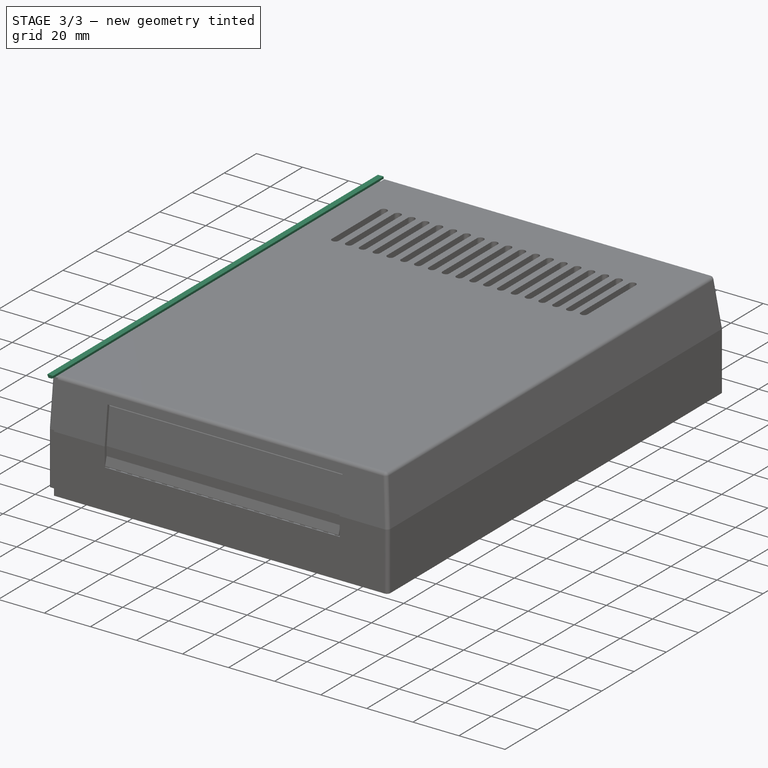
[diagram: stage 3 of 3 — iso view after this stage's code; geometry added in this stage tinted green]
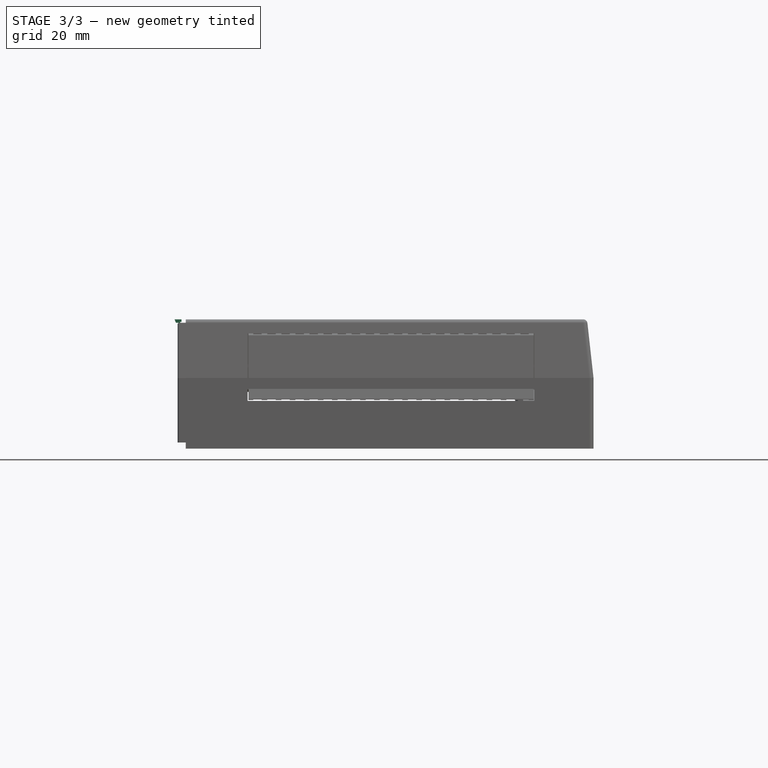
[diagram: stage 3 of 3 — front view after this stage's code; geometry added in this stage tinted green]
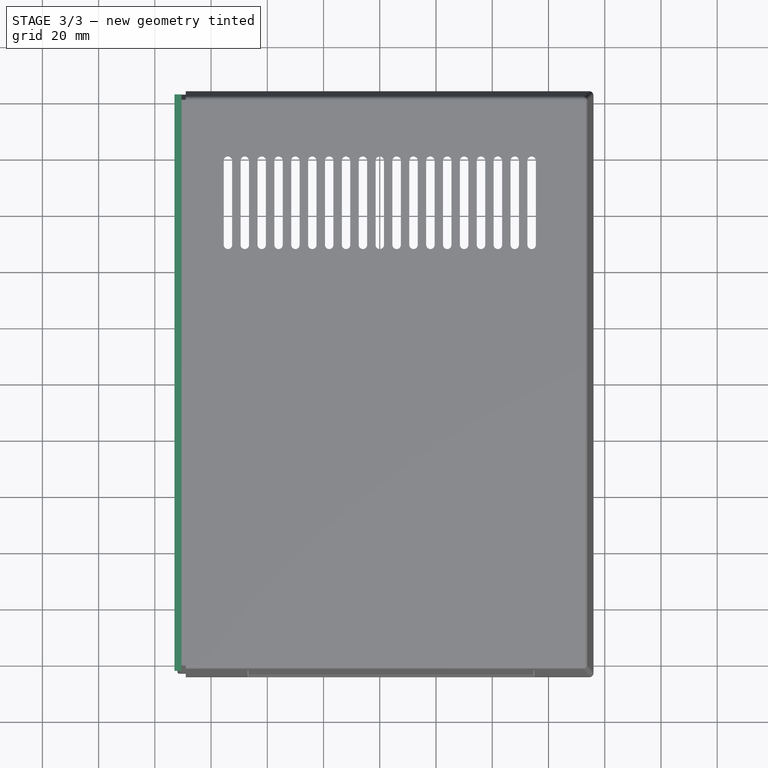
[diagram: stage 3 of 3 — top view after this stage's code; geometry added in this stage tinted green]
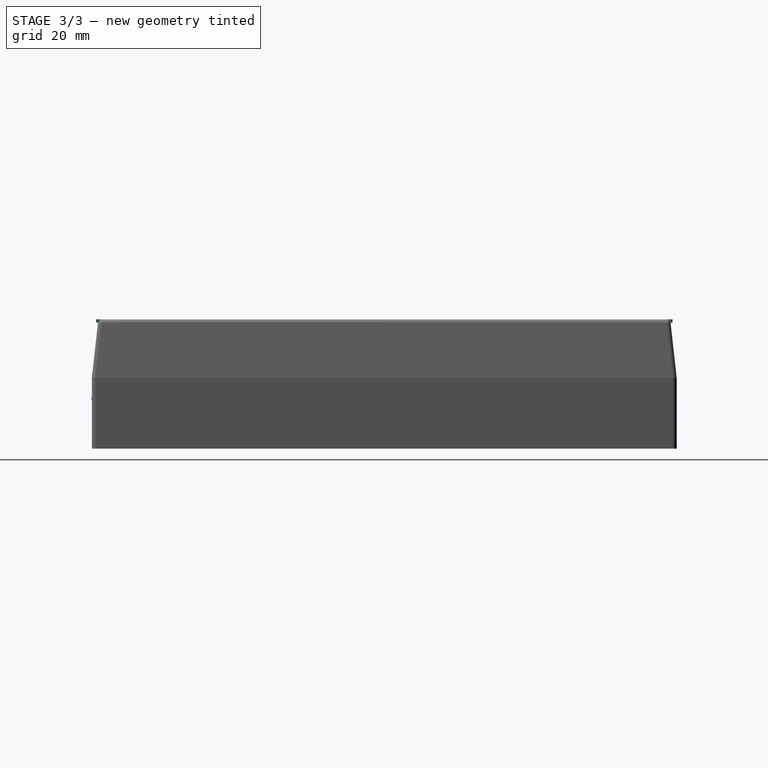
[diagram: stage 3 of 3 — right view after this stage's code; geometry added in this stage tinted green]
FEATURE [Part::Feature] Part__Feature  label="Kbd001"
  Placement = pos=(192,0,0) rot=(0,0,1;0rad)
  shape: bbox 8 x 10.12 x 12.9 mm, 16 faces (baked)
FEATURE [Part::Feature] Part__Feature001  label="KbdRight (clone)"
  Placement = pos=(192,0,0) rot=(0,0,1;0rad)
  shape: bbox 3.6 x 8 x 16 mm, 8 faces (baked)
FEATURE [Part::Feature] Part__Feature002  label="Kbd left (clone)"
  Placement = pos=(82.2,0,0) rot=(0,0,1;0rad)
  shape: bbox 6.6 x 9.532 x 16 mm, 14 faces (baked)
FEATURE [Part::Feature] Part__Feature003  label="Right"
  shape: bbox 349 x 208 x 55 mm, 222 faces (baked)
FEATURE [Sketcher::SketchObject] Sketch
  FullyConstrained = false
  MapMode = 5
  Placement = pos=(0,0,0) rot=(1,0,0;1.5708rad)
  Support = -> [XZ_Plane001]
  sketch-geometry (6):
    g0: LineSegment StartX=29.5 StartY=51.1 StartZ=0 EndX=29.5 EndY=52 EndZ=0
    g1: LineSegment StartX=29.5 StartY=52 StartZ=0 EndX=27 EndY=52 EndZ=0
    g2: LineSegment StartX=27 StartY=52 StartZ=0 EndX=27.5 EndY=50.8 EndZ=0
    g3: LineSegment StartX=29.5 StartY=51.1 StartZ=0 EndX=29 EndY=51.1 EndZ=0
    g4: LineSegment StartX=29 StartY=51.1 StartZ=0 EndX=29 EndY=50.8 EndZ=0
    g5: LineSegment StartX=29 StartY=50.8 StartZ=0 EndX=27.5 EndY=50.8 EndZ=0
  constraints (9):
    c: Coincident(g0,g1)
    c: Horizontal(g1)
    c: Coincident(g1,g2)
    c: Coincident(g0,g3)
    c: Horizontal(g3)
    c: Coincident(g3,g4)
    c: Vertical(g4)
    c: Coincident(g4,g5)
    c: Horizontal(g5)
FEATURE [PartDesign::Pad] Pad
  Direction = (0,-1,2e-16)
  Length = 205
  Length2 = 10
  Midplane = true
  Placement = pos=(0,0,0) rot=(1,0,0;1.5708rad)
  Profile = -> Sketch
  ReferenceAxis = -> Sketch [N_Axis]
  Refine = true
  Type = 0
FEATURE [Sketcher::SketchObject] Sketch005
  AttachmentOffset = pos=(0,12,102) rot=(0,0,1;0rad)
  ExternalGeometry = -> [Pocket001]
  FullyConstrained = false
  MapMode = 5
  Placement = pos=(0,-102,12) rot=(1,0,0;1.5708rad)
  Support = -> [XZ_Plane002]
  sketch-geometry (9):
    g0: LineSegment StartX=156 StartY=23 StartZ=0 EndX=154 EndY=23 EndZ=0
    g1: LineSegment StartX=154 StartY=23 StartZ=0 EndX=154 EndY=24 EndZ=0
    g2: LineSegment StartX=154 StartY=24 StartZ=0 EndX=156 EndY=24 EndZ=0
    g3: LineSegment StartX=156 StartY=24 StartZ=0 EndX=156 EndY=23 EndZ=0
    g4: LineSegment StartX=104 StartY=2.55522 StartZ=0 EndX=104 EndY=46.4937 EndZ=0
    g5: LineSegment StartX=52 StartY=23 StartZ=0 EndX=54 EndY=23 EndZ=0
    g6: LineSegment StartX=54 StartY=23 StartZ=0 EndX=54 EndY=24 EndZ=0
    g7: LineSegment StartX=54 StartY=24 StartZ=0 EndX=52 EndY=24 EndZ=0
    g8: LineSegment StartX=52 StartY=24 StartZ=0 EndX=52 EndY=23 EndZ=0
  constraints (8):
    c: Coincident(g5,g8)
    c: Coincident(g7,g8)
    c: Coincident(g5,g6)
    c: Coincident(g6,g7)
    c: Coincident(g0,g1)
    c: Coincident(g1,g2)
    c: Coincident(g0,g3)
    c: Coincident(g2,g3)
FEATURE [PartDesign::Pad] Pad002
  BaseFeature = -> Pocket001
  Direction = (0,-1,-2e-16)
  Length = 0.8
  Length2 = 10
  Midplane = true
  Profile = -> Sketch005
  ReferenceAxis = -> Sketch005 [N_Axis]
  Refine = true
  Type = 0
FEATURE [PartDesign::Pocket] Pocket
  BaseFeature = -> Pad002
  Direction = (1,-8e-16,1e-16)
  Length = 10
  Length2 = 5
  Profile = -> Sketch003
  ReferenceAxis = -> Sketch003 [N_Axis]
  Refine = true
  Type = 0
FEATURE [PartDesign::Body] Body001  label="Body"
  BaseFeature = -> Part__Feature003
  Group = -> [BaseFeature,Chamfer,Fillet,Sketch002,Pad001,Sketch003,Sketch004,Pocket001,Sketch005,Pad002,Pocket]
  Origin = -> Origin002
  Tip = -> Pad002
FEATURE [App::Part] CaseTopWithGrooves  label="TopRight"
  Group = -> [Part__Feature,Part__Feature001,Part__Feature002,Body,Body001]
  Origin = -> Origin
  Placement = pos=(0,0,0) rot=(0,-1,0;3.14159rad)
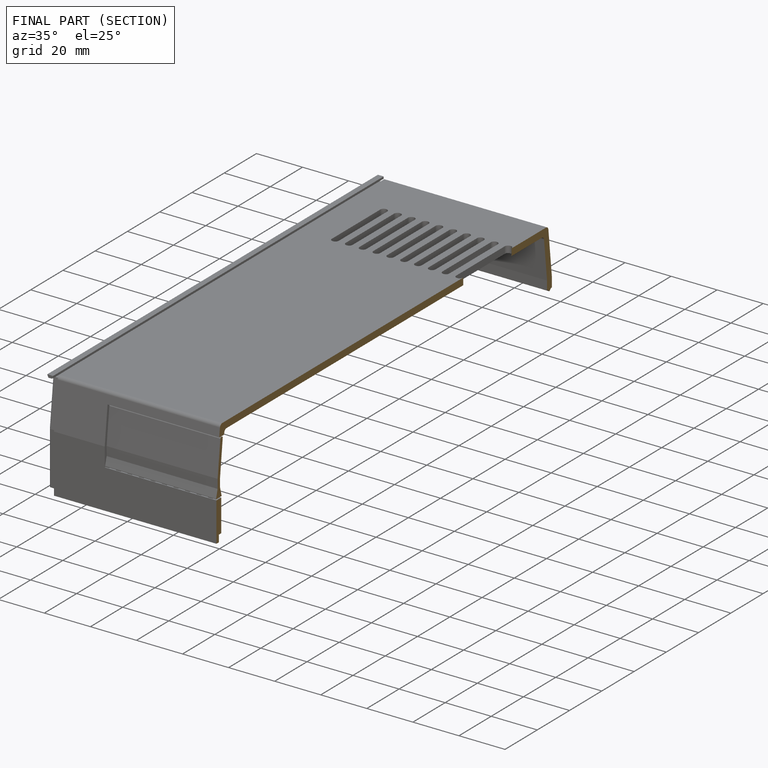
[diagram: finished part — half-section view (interior)]
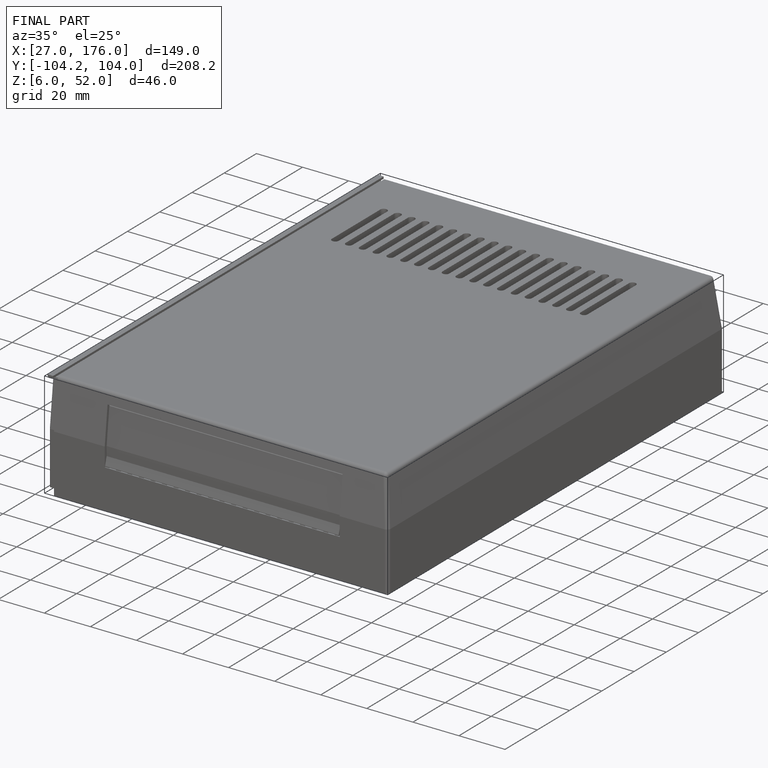
[diagram: finished part — iso view with bounding-box wireframe]
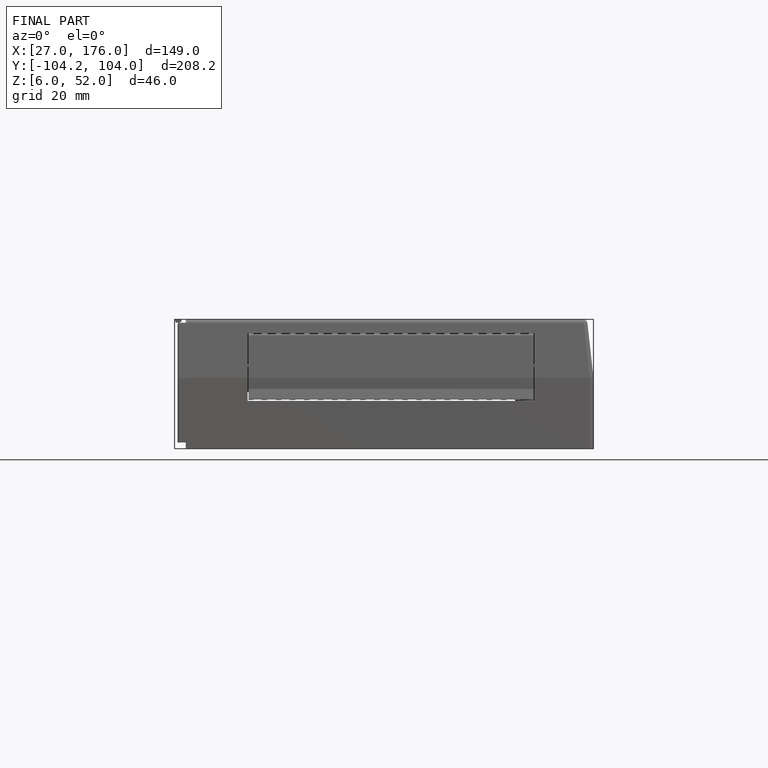
[diagram: finished part — front view with bounding-box wireframe]
